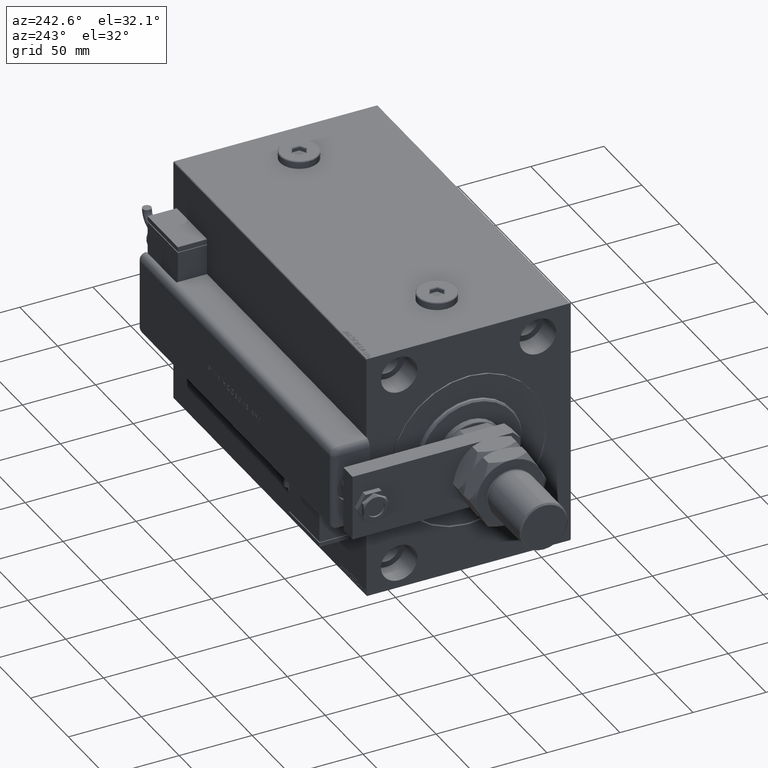
[diagram: clean part render]
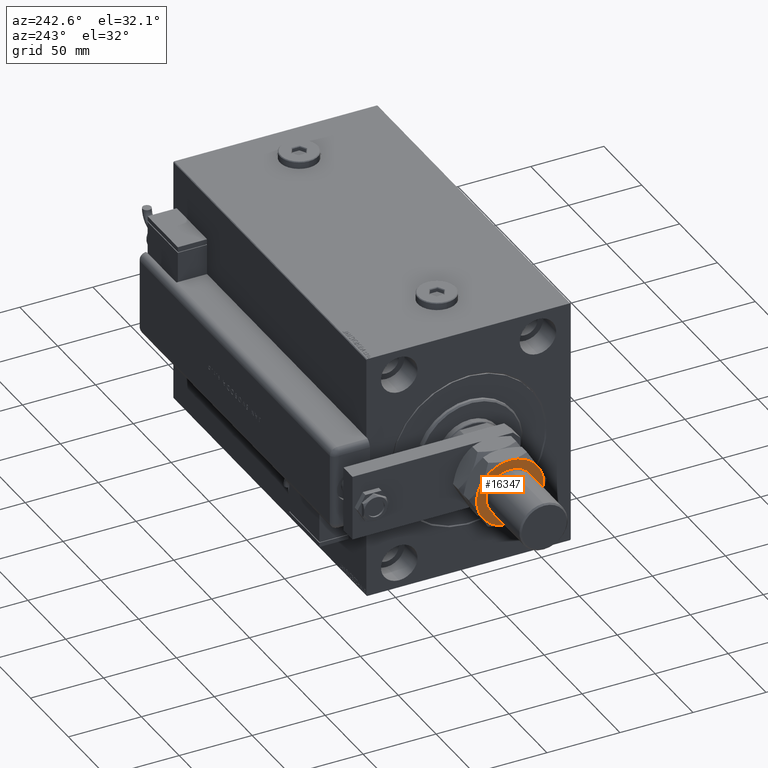
[diagram: same view with one face highlighted and labeled with its STEP entity id]
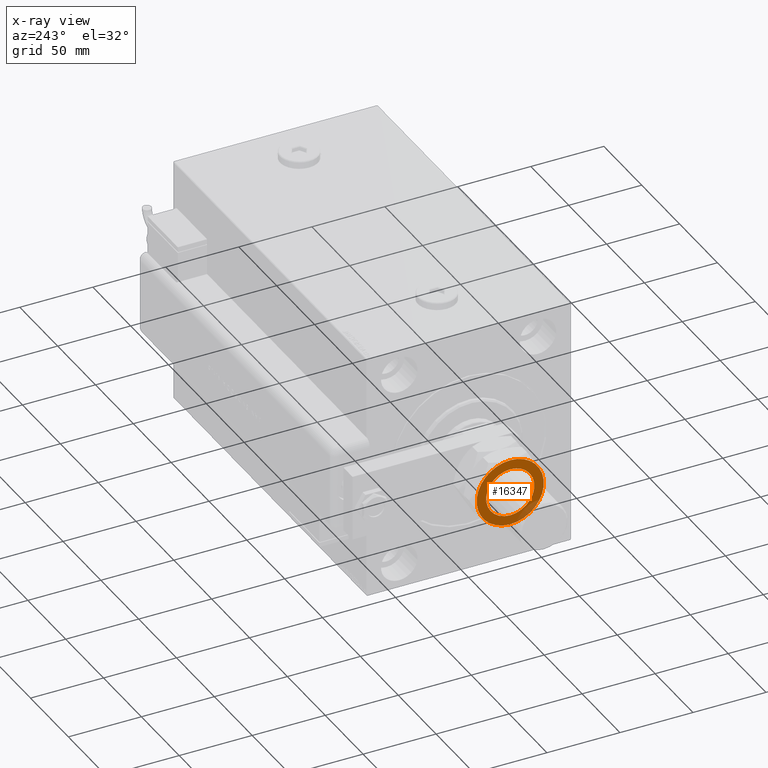
[diagram: x-ray of the same camera — body ghosted, the highlighted face saturated]
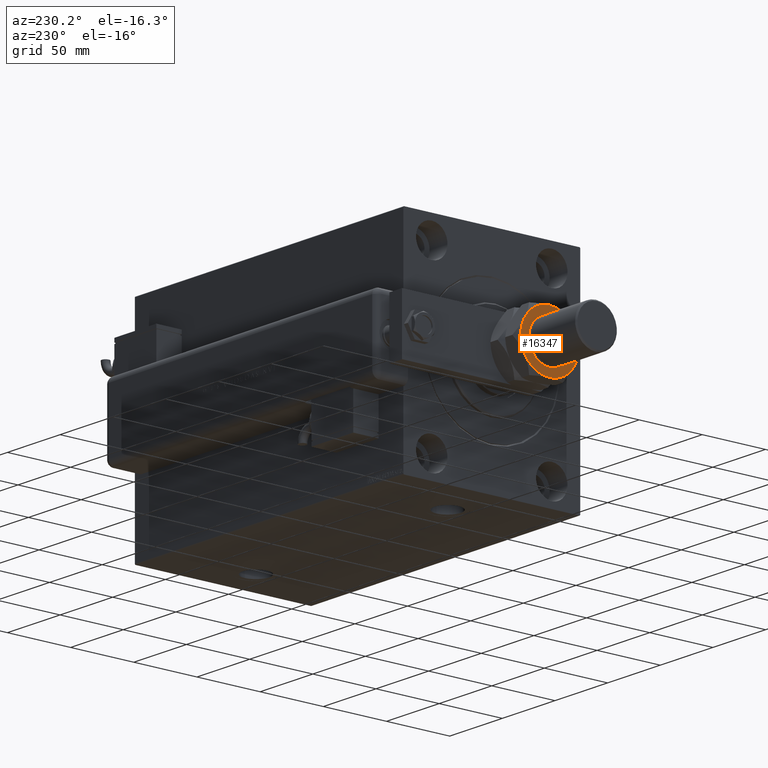
[diagram: same view with one face highlighted and labeled with its STEP entity id]
A machine part, auxiliary view. The second image highlights one B-rep face of the part: STEP entity #16347.
The next image is the same camera in x-ray: the body ghosted, the highlighted face saturated — about 8% of this face is hidden behind the body in this view.
A second angle (auxiliary view) of the same face is appended — the face is thin or edge-on in the first view.
In plain terms, the highlighted planar face has unit normal (-1, 0, 0).
Its self-contained STEP definition (entity closure, byte-faithful):
#1023 = AXIS2_PLACEMENT_3D ( 'NONE', #4125, #14282, #19034 ) ;
#1094 = DIRECTION ( 'NONE',  ( 1.000000000000000000, 0.000000000000000000, 0.000000000000000000 ) ) ;
#1147 = DIRECTION ( 'NONE',  ( 0.000000000000000000, 0.000000000000000000, 1.000000000000000000 ) ) ;
#1327 = CARTESIAN_POINT ( 'NONE',  ( -16.50000000000000000, 2.020667218593133100E-15, 28.00000000000000000 ) ) ;
#2012 = CARTESIAN_POINT ( 'NONE',  ( 0.000000000000000000, 0.000000000000000000, 28.00000000000000000 ) ) ;
#2479 = FACE_BOUND ( 'NONE', #3031, .T. ) ;
#3011 = EDGE_CURVE ( 'NONE', #13584, #22722, #35636, .T. ) ;
#3031 = EDGE_LOOP ( 'NONE', ( #57971, #33220 ) ) ;
#3504 = CIRCLE ( 'NONE', #55243, 22.99999999999999645 ) ;
#3582 = EDGE_CURVE ( 'NONE', #57087, #5377, #55906, .T. ) ;
#4125 = CARTESIAN_POINT ( 'NONE',  ( 0.000000000000000000, 0.000000000000000000, 28.00000000000000000 ) ) ;
#4811 = CARTESIAN_POINT ( 'NONE',  ( 16.50000000000000000, 0.000000000000000000, 28.00000000000000000 ) ) ;
#5159 = EDGE_CURVE ( 'NONE', #22722, #57087, #53774, .T. ) ;
#5377 = VERTEX_POINT ( 'NONE', #14060 ) ;
#6468 = DIRECTION ( 'NONE',  ( 0.000000000000000000, 0.000000000000000000, 1.000000000000000000 ) ) ;
#7843 = PLANE ( 'NONE',  #8579 ) ;
#8579 = AXIS2_PLACEMENT_3D ( 'NONE', #12000, #42160, #31383 ) ;
#8737 = EDGE_CURVE ( 'NONE', #20260, #59525, #49994, .T. ) ;
#8918 = ORIENTED_EDGE ( 'NONE', *, *, #3011, .T. ) ;
#12000 = CARTESIAN_POINT ( 'NONE',  ( 0.000000000000000000, 0.000000000000000000, 28.00000000000000000 ) ) ;
#12104 = AXIS2_PLACEMENT_3D ( 'NONE', #30044, #1147, #35131 ) ;
#12932 = FACE_OUTER_BOUND ( 'NONE', #58767, .T. ) ;
#13411 = CARTESIAN_POINT ( 'NONE',  ( 0.000000000000000000, 0.000000000000000000, 28.00000000000000000 ) ) ;
#13584 = VERTEX_POINT ( 'NONE', #53377 ) ;
#14060 = CARTESIAN_POINT ( 'NONE',  ( 22.99999999999999645, 0.000000000000000000, 28.00000000000000000 ) ) ;
#14282 = DIRECTION ( 'NONE',  ( 0.000000000000000000, 0.000000000000000000, 1.000000000000000000 ) ) ;
#15617 = DIRECTION ( 'NONE',  ( 1.000000000000000000, 0.000000000000000000, 0.000000000000000000 ) ) ;
#16347 = ADVANCED_FACE ( 'NONE', ( #2479, #12932 ), #7843, .T. ) ;
#16649 = EDGE_CURVE ( 'NONE', #52888, #13584, #3504, .T. ) ;
#16678 = CARTESIAN_POINT ( 'NONE',  ( 0.000000000000000000, 0.000000000000000000, 28.00000000000000000 ) ) ;
#17903 = CIRCLE ( 'NONE', #31264, 16.50000000000000000 ) ;
#18231 = DIRECTION ( 'NONE',  ( 0.000000000000000000, 0.000000000000000000, 1.000000000000000000 ) ) ;
#19034 = DIRECTION ( 'NONE',  ( 1.000000000000000000, 0.000000000000000000, 0.000000000000000000 ) ) ;
#19112 = DIRECTION ( 'NONE',  ( 1.000000000000000000, 0.000000000000000000, 0.000000000000000000 ) ) ;
#19195 = CARTESIAN_POINT ( 'NONE',  ( 11.49999999999999822, 19.91858428704208706, 28.00000000000000000 ) ) ;
#20067 = CARTESIAN_POINT ( 'NONE',  ( 0.000000000000000000, 0.000000000000000000, 28.00000000000000000 ) ) ;
#20260 = VERTEX_POINT ( 'NONE', #4811 ) ;
#22722 = VERTEX_POINT ( 'NONE', #44552 ) ;
#25152 = DIRECTION ( 'NONE',  ( 0.000000000000000000, 0.000000000000000000, 1.000000000000000000 ) ) ;
#25343 = EDGE_CURVE ( 'NONE', #59525, #20260, #17903, .T. ) ;
#28661 = DIRECTION ( 'NONE',  ( -0.000000000000000000, -0.000000000000000000, -1.000000000000000000 ) ) ;
#28746 = DIRECTION ( 'NONE',  ( -0.000000000000000000, -0.000000000000000000, -1.000000000000000000 ) ) ;
#29373 = CARTESIAN_POINT ( 'NONE',  ( 0.000000000000000000, 0.000000000000000000, 28.00000000000000000 ) ) ;
#30044 = CARTESIAN_POINT ( 'NONE',  ( 0.000000000000000000, 0.000000000000000000, 28.00000000000000000 ) ) ;
#30916 = DIRECTION ( 'NONE',  ( 0.000000000000000000, 0.000000000000000000, 1.000000000000000000 ) ) ;
#31264 = AXIS2_PLACEMENT_3D ( 'NONE', #29373, #28746, #1094 ) ;
#31383 = DIRECTION ( 'NONE',  ( 1.000000000000000000, 0.000000000000000000, -0.000000000000000000 ) ) ;
#32294 = EDGE_CURVE ( 'NONE', #37142, #52888, #57728, .T. ) ;
#32384 = AXIS2_PLACEMENT_3D ( 'NONE', #16678, #18231, #32545 ) ;
#32545 = DIRECTION ( 'NONE',  ( 1.000000000000000000, 0.000000000000000000, 0.000000000000000000 ) ) ;
#33220 = ORIENTED_EDGE ( 'NONE', *, *, #25343, .T. ) ;
#33234 = ORIENTED_EDGE ( 'NONE', *, *, #3582, .T. ) ;
#33649 = ORIENTED_EDGE ( 'NONE', *, *, #32294, .T. ) ;
#35131 = DIRECTION ( 'NONE',  ( 1.000000000000000000, 0.000000000000000000, 0.000000000000000000 ) ) ;
#35636 = CIRCLE ( 'NONE', #58948, 22.99999999999999645 ) ;
#36008 = CARTESIAN_POINT ( 'NONE',  ( -11.49999999999999822, 19.91858428704208706, 28.00000000000000000 ) ) ;
#37142 = VERTEX_POINT ( 'NONE', #19195 ) ;
#40154 = CARTESIAN_POINT ( 'NONE',  ( 0.000000000000000000, 0.000000000000000000, 28.00000000000000000 ) ) ;
#42160 = DIRECTION ( 'NONE',  ( 0.000000000000000000, 0.000000000000000000, 1.000000000000000000 ) ) ;
#44552 = CARTESIAN_POINT ( 'NONE',  ( -11.50000000000000533, -19.91858428704208706, 28.00000000000000000 ) ) ;
#48003 = AXIS2_PLACEMENT_3D ( 'NONE', #13411, #28661, #19112 ) ;
#48459 = CIRCLE ( 'NONE', #32384, 22.99999999999999645 ) ;
#49994 = CIRCLE ( 'NONE', #48003, 16.50000000000000000 ) ;
#51316 = ORIENTED_EDGE ( 'NONE', *, *, #16649, .T. ) ;
#51374 = ORIENTED_EDGE ( 'NONE', *, *, #5159, .T. ) ;
#51784 = AXIS2_PLACEMENT_3D ( 'NONE', #40154, #6468, #54425 ) ;
#52822 = ORIENTED_EDGE ( 'NONE', *, *, #58822, .T. ) ;
#52888 = VERTEX_POINT ( 'NONE', #36008 ) ;
#53377 = CARTESIAN_POINT ( 'NONE',  ( -22.99999999999999645, 0.000000000000000000, 28.00000000000000000 ) ) ;
#53774 = CIRCLE ( 'NONE', #51784, 22.99999999999999645 ) ;
#54425 = DIRECTION ( 'NONE',  ( 1.000000000000000000, 0.000000000000000000, 0.000000000000000000 ) ) ;
#54722 = DIRECTION ( 'NONE',  ( 1.000000000000000000, 0.000000000000000000, 0.000000000000000000 ) ) ;
#55243 = AXIS2_PLACEMENT_3D ( 'NONE', #20067, #25152, #15617 ) ;
#55906 = CIRCLE ( 'NONE', #1023, 22.99999999999999645 ) ;
#57087 = VERTEX_POINT ( 'NONE', #59182 ) ;
#57728 = CIRCLE ( 'NONE', #12104, 22.99999999999999645 ) ;
#57971 = ORIENTED_EDGE ( 'NONE', *, *, #8737, .T. ) ;
#58767 = EDGE_LOOP ( 'NONE', ( #33234, #52822, #33649, #51316, #8918, #51374 ) ) ;
#58822 = EDGE_CURVE ( 'NONE', #5377, #37142, #48459, .T. ) ;
#58948 = AXIS2_PLACEMENT_3D ( 'NONE', #2012, #30916, #54722 ) ;
#59182 = CARTESIAN_POINT ( 'NONE',  ( 11.50000000000000533, -19.91858428704207995, 28.00000000000000000 ) ) ;
#59525 = VERTEX_POINT ( 'NONE', #1327 ) ;